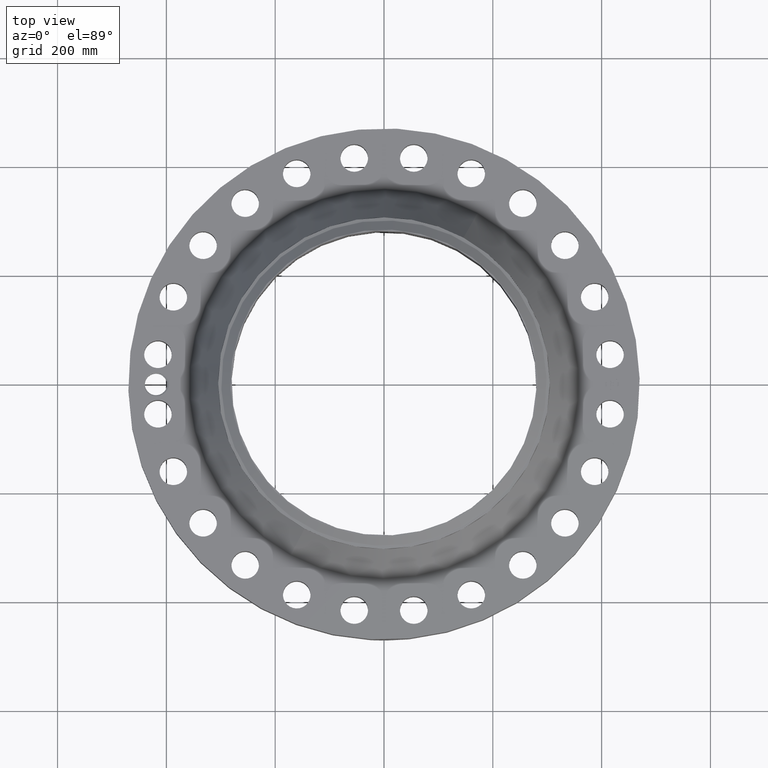
[diagram: clean part render]
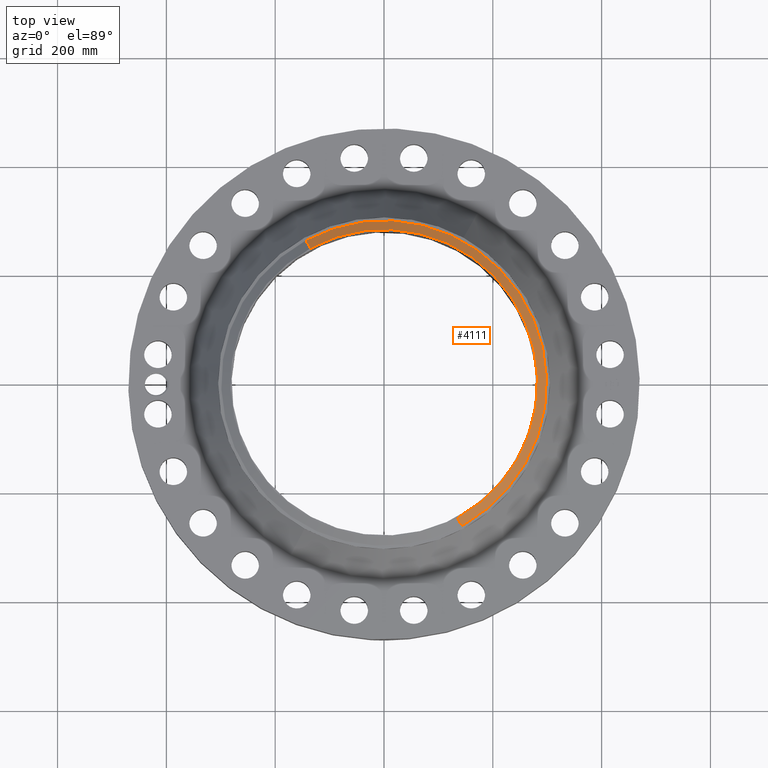
[diagram: same view with one face highlighted and labeled with its STEP entity id]
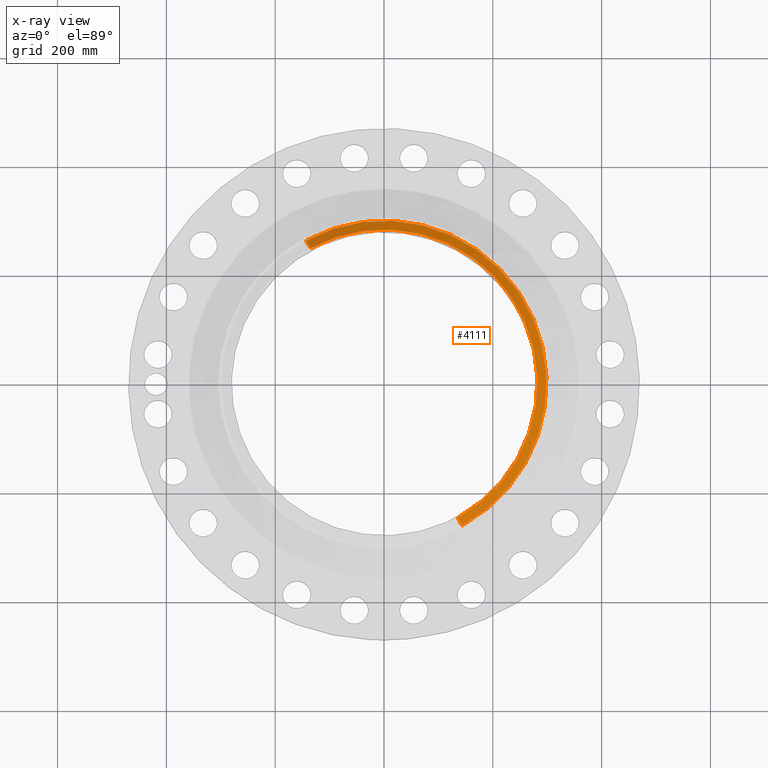
[diagram: x-ray of the same camera — body ghosted, the highlighted face saturated]
A machine part, top view. The second image highlights one B-rep face of the part: STEP entity #4111.
The next image is the same camera in x-ray: the body ghosted, the highlighted face saturated — about 0% of this face is hidden behind the body in this view.
In plain terms, the highlighted conical surface has half-angle 52.5 deg.
Its self-contained STEP definition (entity closure, byte-faithful):
#3252=AXIS2_PLACEMENT_3D('Circle Axis2P3D',#3250,#3251,$) ;
#4072=AXIS2_PLACEMENT_3D('Cone Axis2P3D',#4069,#4070,#4071) ;
#4102=AXIS2_PLACEMENT_3D('Circle Axis2P3D',#4100,#4101,$) ;
#3250=CARTESIAN_POINT('Axis2P3D Location',(0.,0.,8.25000000003)) ;
#3254=CARTESIAN_POINT('Vertex',(5.32629315877,-9.74971422938,8.25000000003)) ;
#3256=CARTESIAN_POINT('Vertex',(-5.32629315877,9.74971422938,8.25000000003)) ;
#4069=CARTESIAN_POINT('Axis2P3D Location',(0.,0.,8.25000000003)) ;
#4074=CARTESIAN_POINT('Line Origine',(-5.48123446132,10.0333323813,8.0020143726)) ;
#4078=CARTESIAN_POINT('Vertex',(-5.63617576387,10.3169505332,7.75402874516)) ;
#4085=CARTESIAN_POINT('Vertex',(5.63617576387,-10.3169505332,7.75402874516)) ;
#4088=CARTESIAN_POINT('Line Origine',(5.48123446132,-10.0333323813,8.0020143726)) ;
#4100=CARTESIAN_POINT('Axis2P3D Location',(0.,0.,7.75402874516)) ;
#3251=DIRECTION('Axis2P3D Direction',(0.,0.,-0.0393700787402)) ;
#4070=DIRECTION('Axis2P3D Direction',(-0.,-0.,-0.0393700787402)) ;
#4071=DIRECTION('Axis2P3D XDirection',(-0.0188750212049,0.0345504945626,0.)) ;
#4075=DIRECTION('Vector Direction',(-0.014974561121,0.02741075027,-0.023966985394)) ;
#4089=DIRECTION('Vector Direction',(0.014974561121,-0.02741075027,-0.023966985394)) ;
#4101=DIRECTION('Axis2P3D Direction',(0.,0.,-0.0393700787402)) ;
#4076=VECTOR('Line Direction',#4075,0.0393700787402) ;
#4090=VECTOR('Line Direction',#4089,0.0393700787402) ;
#4106=ORIENTED_EDGE('',*,*,#3258,.F.) ;
#4107=ORIENTED_EDGE('',*,*,#4092,.T.) ;
#4108=ORIENTED_EDGE('',*,*,#4104,.T.) ;
#4109=ORIENTED_EDGE('',*,*,#4080,.F.) ;
#4111=ADVANCED_FACE('PartBody',(#4110),#4073,.T.) ;
#3253=CIRCLE('generated circle',#3252,11.1097401575) ;
#4103=CIRCLE('generated circle',#4102,11.7561024811) ;
#4073=CONICAL_SURFACE('Cone',#4072,11.1097401575,0.916297857297) ;
#3258=EDGE_CURVE('',#3255,#3257,#3253,.F.) ;
#4080=EDGE_CURVE('',#3257,#4079,#4077,.T.) ;
#4092=EDGE_CURVE('',#3255,#4086,#4091,.T.) ;
#4104=EDGE_CURVE('',#4086,#4079,#4103,.F.) ;
#4105=EDGE_LOOP('',(#4106,#4107,#4108,#4109)) ;
#4110=FACE_OUTER_BOUND('',#4105,.T.) ;
#4077=LINE('Line',#4074,#4076) ;
#4091=LINE('Line',#4088,#4090) ;
#3255=VERTEX_POINT('',#3254) ;
#3257=VERTEX_POINT('',#3256) ;
#4079=VERTEX_POINT('',#4078) ;
#4086=VERTEX_POINT('',#4085) ;